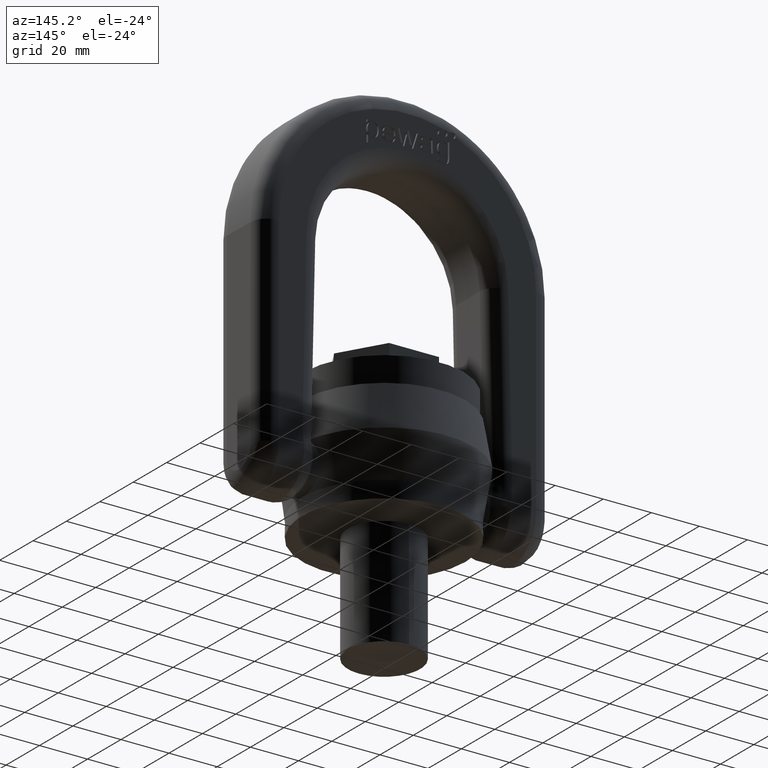
[diagram: clean part render]
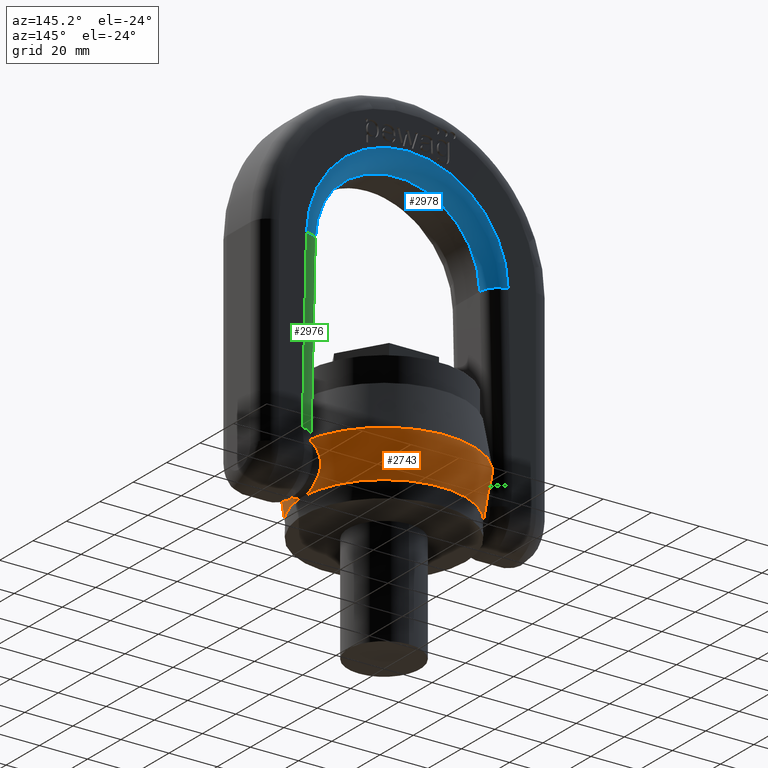
[diagram: same view with three faces highlighted in distinct colors, each labeled with its STEP entity id]
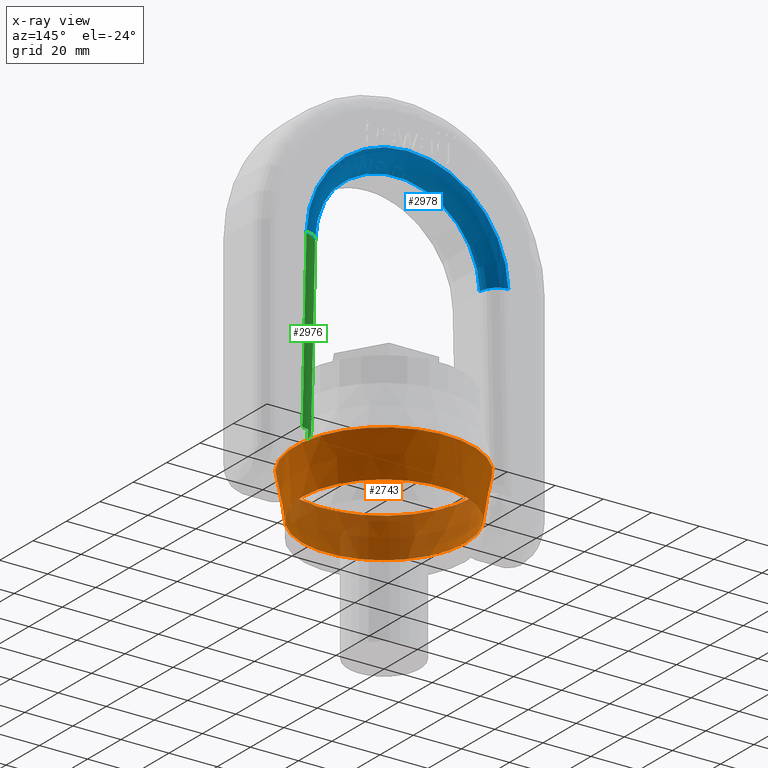
[diagram: x-ray of the same camera — body ghosted, the three highlighted faces saturated]
A machine part, auxiliary view with three faces highlighted in distinct colors.
The next image is the same camera in x-ray (body ghosted, the three faces saturated) — at least one of them is partly hidden behind the body in this view.
Their STEP definitions:

[orange] entity #2743 — the highlighted conical surface has half-angle 10 deg.
#2409=CONICAL_SURFACE('',#5611,34.,9.99999999999997);
#2743=ADVANCED_FACE('',(#3007,#3008),#2409,.T.);
#3007=FACE_BOUND('',#3070,.T.);
#3008=FACE_BOUND('',#3071,.T.);
#3070=EDGE_LOOP('',(#3346));
#3071=EDGE_LOOP('',(#3347));
#3346=ORIENTED_EDGE('',*,*,#4947,.T.);
#3347=ORIENTED_EDGE('',*,*,#4943,.F.);
#4543=VERTEX_POINT('',#6596);
#4547=VERTEX_POINT('',#6608);
#4943=EDGE_CURVE('',#4543,#4543,#5545,.T.);
#4947=EDGE_CURVE('',#4547,#4547,#5549,.T.);
#5545=CIRCLE('',#5602,34.);
#5549=CIRCLE('',#5610,37.1915183508232);
#5602=AXIS2_PLACEMENT_3D('',#6595,#5810,#5811);
#5610=AXIS2_PLACEMENT_3D('',#6607,#5826,#5827);
#5611=AXIS2_PLACEMENT_3D('',#6609,#5828,#5829);
#5810=DIRECTION('',(0.,0.,-1.));
#5811=DIRECTION('',(-1.,0.,0.));
#5826=DIRECTION('',(0.,0.,-1.));
#5827=DIRECTION('',(-1.,0.,0.));
#5828=DIRECTION('',(0.,0.,1.));
#5829=DIRECTION('',(1.,0.,-4.98988622111538E-16));
#6595=CARTESIAN_POINT('',(0.,0.,7.));
#6596=CARTESIAN_POINT('',(-34.,0.,7.));
#6607=CARTESIAN_POINT('',(0.,0.,25.1));
#6608=CARTESIAN_POINT('',(-37.1915183508232,0.,25.1));
#6609=CARTESIAN_POINT('',(0.,0.,7.));

[blue] entity #2978 — the highlighted toroidal blend (fillet) surface has major radius 42 mm and minor (blend) radius 7 mm.
#212=TOROIDAL_SURFACE('',#5807,42.,7.);
#2624=FACE_OUTER_BOUND('',#3338,.T.);
#2978=ADVANCED_FACE('',(#2624),#212,.T.);
#3338=EDGE_LOOP('',(#4539,#4540,#4541,#4542));
#4539=ORIENTED_EDGE('',*,*,#5543,.T.);
#4540=ORIENTED_EDGE('',*,*,#5082,.F.);
#4541=ORIENTED_EDGE('',*,*,#5544,.T.);
#4542=ORIENTED_EDGE('',*,*,#5297,.F.);
#4666=VERTEX_POINT('',#7060);
#4668=VERTEX_POINT('',#7066);
#4798=VERTEX_POINT('',#8222);
#4799=VERTEX_POINT('',#8224);
#5082=EDGE_CURVE('',#4666,#4668,#5563,.T.);
#5297=EDGE_CURVE('',#4798,#4799,#5572,.T.);
#5543=EDGE_CURVE('',#4798,#4668,#5599,.T.);
#5544=EDGE_CURVE('',#4666,#4799,#5600,.T.);
#5563=CIRCLE('',#5649,35.);
#5572=CIRCLE('',#5711,42.);
#5599=CIRCLE('',#5803,7.);
#5600=CIRCLE('',#5805,7.);
#5649=AXIS2_PLACEMENT_3D('',#7065,#5986,#5987);
#5711=AXIS2_PLACEMENT_3D('',#8223,#6251,#6252);
#5803=AXIS2_PLACEMENT_3D('',#9656,#6584,#6585);
#5805=AXIS2_PLACEMENT_3D('',#9658,#6588,#6589);
#5807=AXIS2_PLACEMENT_3D('',#9660,#6592,#6593);
#5986=DIRECTION('',(2.34291072916505E-15,1.,0.));
#5987=DIRECTION('',(1.,-2.35426757453995E-15,0.));
#6251=DIRECTION('',(-2.34291072916505E-15,-1.,0.));
#6252=DIRECTION('',(1.,-2.35426757453995E-15,0.));
#6584=DIRECTION('',(-0.0230857815721761,4.57685111480305E-17,0.999733487830233));
#6585=DIRECTION('',(0.999733487830232,0.,0.0230857815721761));
#6588=DIRECTION('',(0.0230857815721761,-4.57685111480304E-17,0.999733487830232));
#6589=DIRECTION('',(0.999733487830232,0.,-0.0230857815721761));
#6592=DIRECTION('',(-2.34291072916505E-15,-1.,0.));
#6593=DIRECTION('',(1.,-2.33656631458101E-15,0.));
#7060=CARTESIAN_POINT('',(-34.9906720740581,7.0000000000001,98.8080023550261));
#7065=CARTESIAN_POINT('',(0.,6.99999999999998,98.));
#7066=CARTESIAN_POINT('',(34.9906720740581,6.9999999999999,98.8080023550261));
#8222=CARTESIAN_POINT('',(41.9888064888698,13.9999999999999,98.9696028260314));
#8223=CARTESIAN_POINT('',(1.64003751041553E-14,14.,98.));
#8224=CARTESIAN_POINT('',(-41.9888064888698,14.0000000000001,98.9696028260314));
#9656=CARTESIAN_POINT('',(41.9888064888698,6.9999999999999,98.9696028260314));
#9658=CARTESIAN_POINT('',(-41.9888064888698,7.0000000000001,98.9696028260314));
#9660=CARTESIAN_POINT('',(0.,7.,98.));

[green] entity #2976 — the highlighted cylindrical surface (edge-blend (fillet) strip) has radius 7 mm, axis along (-0.0231, 0, 0.9997).
#1838=LINE('',#7071,#2120);
#1932=LINE('',#8221,#2259);
#2120=VECTOR('',#5993,1.);
#2259=VECTOR('',#6250,1.);
#2622=FACE_OUTER_BOUND('',#3336,.T.);
#2976=ADVANCED_FACE('',(#2622),#2999,.T.);
#2999=CYLINDRICAL_SURFACE('',#5804,7.);
#3336=EDGE_LOOP('',(#4531,#4532,#4533,#4534));
#4531=ORIENTED_EDGE('',*,*,#5541,.T.);
#4532=ORIENTED_EDGE('',*,*,#5085,.F.);
#4533=ORIENTED_EDGE('',*,*,#5543,.F.);
#4534=ORIENTED_EDGE('',*,*,#5296,.F.);
#4668=VERTEX_POINT('',#7066);
#4670=VERTEX_POINT('',#7072);
#4797=VERTEX_POINT('',#8220);
#4798=VERTEX_POINT('',#8222);
#5085=EDGE_CURVE('',#4668,#4670,#1838,.T.);
#5296=EDGE_CURVE('',#4797,#4798,#1932,.T.);
#5541=EDGE_CURVE('',#4797,#4670,#5597,.T.);
#5543=EDGE_CURVE('',#4798,#4668,#5599,.T.);
#5597=CIRCLE('',#5801,7.);
#5599=CIRCLE('',#5803,7.);
#5801=AXIS2_PLACEMENT_3D('',#9618,#6580,#6581);
#5803=AXIS2_PLACEMENT_3D('',#9656,#6584,#6585);
#5804=AXIS2_PLACEMENT_3D('',#9657,#6586,#6587);
#5993=DIRECTION('',(0.0230857815721755,-5.40879253366108E-17,-0.999733487830233));
#6250=DIRECTION('',(-0.0230857815721755,5.40879253366108E-17,0.999733487830233));
#6580=DIRECTION('',(-0.0230857815721771,5.40879253366144E-17,0.999733487830233));
#6581=DIRECTION('',(-0.999733487830232,0.,-0.0230857815721771));
#6584=DIRECTION('',(-0.0230857815721761,4.57685111480305E-17,0.999733487830233));
#6585=DIRECTION('',(0.999733487830232,0.,0.0230857815721761));
#6586=DIRECTION('',(-0.0230857815721755,5.40879253366108E-17,0.999733487830233));
#6587=DIRECTION('',(0.999733487830232,0.,0.0230857815721761));
#7066=CARTESIAN_POINT('',(34.9906720740581,6.9999999999999,98.8080023550261));
#7071=CARTESIAN_POINT('',(34.9906720740581,6.9999999999999,98.8080023550261));
#7072=CARTESIAN_POINT('',(36.6875082648093,6.99999999999989,25.3262379212494));
#8220=CARTESIAN_POINT('',(43.685642679621,13.9999999999999,25.4878383922546));
#8221=CARTESIAN_POINT('',(41.9888064888698,13.9999999999999,98.9696028260314));
#8222=CARTESIAN_POINT('',(41.9888064888698,13.9999999999999,98.9696028260314));
#9618=CARTESIAN_POINT('',(43.6856426796209,6.9999999999999,25.4878383922546));
#9656=CARTESIAN_POINT('',(41.9888064888698,6.9999999999999,98.9696028260314));
#9657=CARTESIAN_POINT('',(41.9888064888698,6.9999999999999,98.9696028260314));